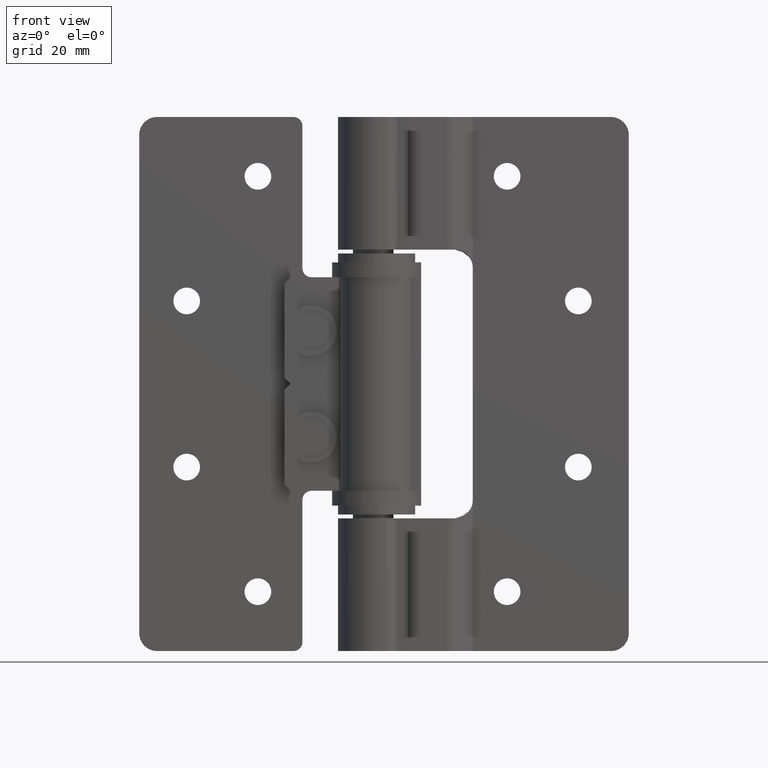
[diagram: clean part render]
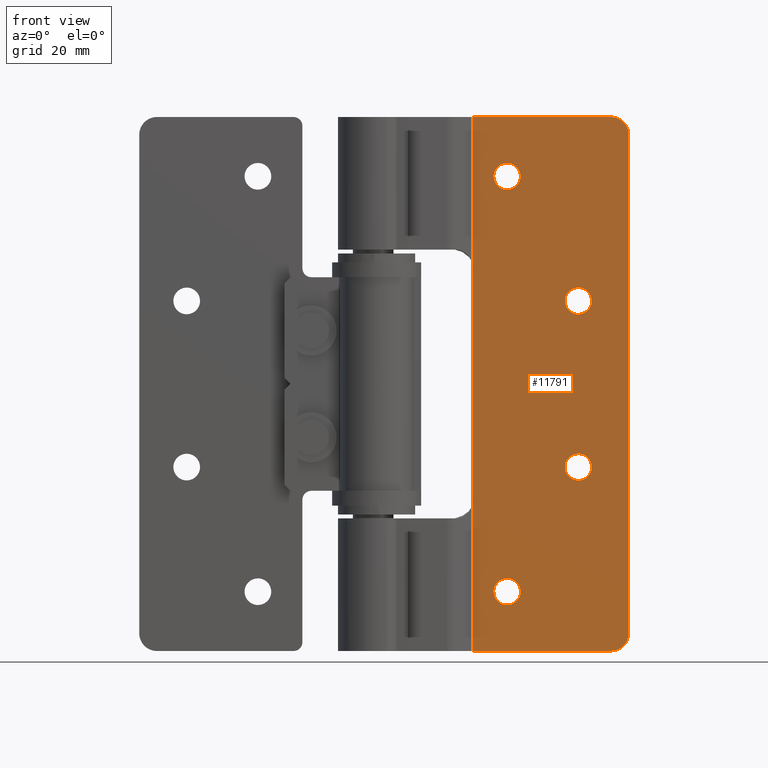
[diagram: same view with one face highlighted and labeled with its STEP entity id]
A machine part, front view. The second image highlights one B-rep face of the part: STEP entity #11791.
In plain terms, the highlighted face is a freeform B-spline surface patch.
Its self-contained STEP definition (entity closure, byte-faithful):
#10707=CARTESIAN_POINT('',(24.243064000878789,7.0,9.823467034348742));
#10708=VERTEX_POINT('',#10707);
#10714=CARTESIAN_POINT('',(22.0,7.0,12.250000000000000));
#10715=VERTEX_POINT('',#10714);
#10716=CARTESIAN_POINT('',(24.243064000878785,7.0,9.823467034348742));
#10717=CARTESIAN_POINT('',(24.249999999999996,7.000000000000001,9.911597259100329));
#10718=CARTESIAN_POINT('',(24.250000000000000,7.0,10.0));
#10719=CARTESIAN_POINT('',(24.250000000000007,6.999999999999999,12.249999999999996));
#10720=CARTESIAN_POINT('',(22.0,7.0,12.250000000000000));
#10728=(BOUNDED_CURVE()B_SPLINE_CURVE(2,(#10716,#10717,#10718,#10719,#10720),.UNSPECIFIED.,.F.,.U.)B_SPLINE_CURVE_WITH_KNOTS((3,2,3),(0.736331300612621,0.750000000000000,1.0),.UNSPECIFIED.)CURVE()GEOMETRIC_REPRESENTATION_ITEM()RATIONAL_B_SPLINE_CURVE((0.969723356129772,0.983986122557748,1.0,0.707106781186547,1.0))REPRESENTATION_ITEM(''));
#10729=EDGE_CURVE('',#10708,#10715,#10728,.T.);
#10731=CARTESIAN_POINT('',(19.756935999121211,7.0,10.176532965651260));
#10732=VERTEX_POINT('',#10731);
#10733=CARTESIAN_POINT('',(22.0,7.0,12.250000000000000));
#10734=CARTESIAN_POINT('',(19.920121394014227,7.0,12.249999999999998));
#10735=CARTESIAN_POINT('',(19.756935999121204,6.999999999999999,10.176532965651260));
#10743=(BOUNDED_CURVE()B_SPLINE_CURVE(2,(#10733,#10734,#10735),.UNSPECIFIED.,.F.,.U.)B_SPLINE_CURVE_WITH_KNOTS((3,3),(0.0,0.236331300612621),.UNSPECIFIED.)CURVE()GEOMETRIC_REPRESENTATION_ITEM()RATIONAL_B_SPLINE_CURVE((1.0,0.723120658628799,0.969723356129772))REPRESENTATION_ITEM(''));
#10744=EDGE_CURVE('',#10715,#10732,#10743,.T.);
#10790=CARTESIAN_POINT('',(22.0,7.0,7.750000000000000));
#10791=VERTEX_POINT('',#10790);
#10792=CARTESIAN_POINT('',(19.756935999121207,6.999999999999999,10.176532965651257));
#10793=CARTESIAN_POINT('',(19.750000000000004,6.999999999999999,10.088402740899671));
#10794=CARTESIAN_POINT('',(19.750000000000000,7.0,10.0));
#10795=CARTESIAN_POINT('',(19.749999999999996,6.999999999999999,7.750000000000001));
#10796=CARTESIAN_POINT('',(22.0,7.0,7.750000000000000));
#10804=(BOUNDED_CURVE()B_SPLINE_CURVE(2,(#10792,#10793,#10794,#10795,#10796),.UNSPECIFIED.,.F.,.U.)B_SPLINE_CURVE_WITH_KNOTS((3,2,3),(0.236331300612621,0.250000000000000,0.500000000000000),.UNSPECIFIED.)CURVE()GEOMETRIC_REPRESENTATION_ITEM()RATIONAL_B_SPLINE_CURVE((0.969723356129772,0.983986122557748,1.0,0.707106781186547,1.0))REPRESENTATION_ITEM(''));
#10805=EDGE_CURVE('',#10732,#10791,#10804,.T.);
#10807=CARTESIAN_POINT('',(22.0,7.0,7.750000000000000));
#10808=CARTESIAN_POINT('',(24.079878605985783,6.999999999999998,7.749999999999999));
#10809=CARTESIAN_POINT('',(24.243064000878789,7.0,9.823467034348738));
#10817=(BOUNDED_CURVE()B_SPLINE_CURVE(2,(#10807,#10808,#10809),.UNSPECIFIED.,.F.,.U.)B_SPLINE_CURVE_WITH_KNOTS((3,3),(0.500000000000000,0.736331300612621),.UNSPECIFIED.)CURVE()GEOMETRIC_REPRESENTATION_ITEM()RATIONAL_B_SPLINE_CURVE((1.0,0.723120658628799,0.969723356129773))REPRESENTATION_ITEM(''));
#10818=EDGE_CURVE('',#10791,#10708,#10817,.T.);
#10889=CARTESIAN_POINT('',(36.243064000878803,7.0,30.823467034348742));
#10890=VERTEX_POINT('',#10889);
#10896=CARTESIAN_POINT('',(34.0,7.0,33.250000000000000));
#10897=VERTEX_POINT('',#10896);
#10898=CARTESIAN_POINT('',(36.243064000878810,7.000000000000001,30.823467034348738));
#10899=CARTESIAN_POINT('',(36.250000000000021,7.0,30.911597259100326));
#10900=CARTESIAN_POINT('',(36.250000000000007,7.0,31.0));
#10901=CARTESIAN_POINT('',(36.250000000000007,6.999999999999999,33.249999999999993));
#10902=CARTESIAN_POINT('',(34.0,7.0,33.250000000000000));
#10910=(BOUNDED_CURVE()B_SPLINE_CURVE(2,(#10898,#10899,#10900,#10901,#10902),.UNSPECIFIED.,.F.,.U.)B_SPLINE_CURVE_WITH_KNOTS((3,2,3),(0.736331300612621,0.750000000000000,1.0),.UNSPECIFIED.)CURVE()GEOMETRIC_REPRESENTATION_ITEM()RATIONAL_B_SPLINE_CURVE((0.969723356129772,0.983986122557748,1.0,0.707106781186547,1.0))REPRESENTATION_ITEM(''));
#10911=EDGE_CURVE('',#10890,#10897,#10910,.T.);
#10913=CARTESIAN_POINT('',(31.756935999121211,7.0,31.176532965651258));
#10914=VERTEX_POINT('',#10913);
#10915=CARTESIAN_POINT('',(34.0,7.0,33.250000000000000));
#10916=CARTESIAN_POINT('',(31.920121394014213,6.999999999999999,33.250000000000014));
#10917=CARTESIAN_POINT('',(31.756935999121207,7.0,31.176532965651258));
#10925=(BOUNDED_CURVE()B_SPLINE_CURVE(2,(#10915,#10916,#10917),.UNSPECIFIED.,.F.,.U.)B_SPLINE_CURVE_WITH_KNOTS((3,3),(0.0,0.236331300612621),.UNSPECIFIED.)CURVE()GEOMETRIC_REPRESENTATION_ITEM()RATIONAL_B_SPLINE_CURVE((1.0,0.723120658628799,0.969723356129773))REPRESENTATION_ITEM(''));
#10926=EDGE_CURVE('',#10897,#10914,#10925,.T.);
#10972=CARTESIAN_POINT('',(34.0,7.0,28.750000000000000));
#10973=VERTEX_POINT('',#10972);
#10974=CARTESIAN_POINT('',(31.756935999121204,7.000000000000001,31.176532965651244));
#10975=CARTESIAN_POINT('',(31.749999999999993,7.0,31.088402740899660));
#10976=CARTESIAN_POINT('',(31.750000000000000,7.0,31.0));
#10977=CARTESIAN_POINT('',(31.749999999999996,6.999999999999999,28.750000000000000));
#10978=CARTESIAN_POINT('',(34.0,7.0,28.750000000000000));
#10986=(BOUNDED_CURVE()B_SPLINE_CURVE(2,(#10974,#10975,#10976,#10977,#10978),.UNSPECIFIED.,.F.,.U.)B_SPLINE_CURVE_WITH_KNOTS((3,2,3),(0.236331300612621,0.250000000000000,0.500000000000000),.UNSPECIFIED.)CURVE()GEOMETRIC_REPRESENTATION_ITEM()RATIONAL_B_SPLINE_CURVE((0.969723356129773,0.983986122557749,1.0,0.707106781186547,1.0))REPRESENTATION_ITEM(''));
#10987=EDGE_CURVE('',#10914,#10973,#10986,.T.);
#10989=CARTESIAN_POINT('',(34.0,7.0,28.750000000000000));
#10990=CARTESIAN_POINT('',(36.079878605985790,6.999999999999999,28.749999999999996));
#10991=CARTESIAN_POINT('',(36.243064000878803,6.999999999999999,30.823467034348738));
#10999=(BOUNDED_CURVE()B_SPLINE_CURVE(2,(#10989,#10990,#10991),.UNSPECIFIED.,.F.,.U.)B_SPLINE_CURVE_WITH_KNOTS((3,3),(0.500000000000000,0.736331300612621),.UNSPECIFIED.)CURVE()GEOMETRIC_REPRESENTATION_ITEM()RATIONAL_B_SPLINE_CURVE((1.0,0.723120658628799,0.969723356129772))REPRESENTATION_ITEM(''));
#11000=EDGE_CURVE('',#10973,#10890,#10999,.T.);
#11071=CARTESIAN_POINT('',(36.243064000878803,7.0,58.823467034348752));
#11072=VERTEX_POINT('',#11071);
#11078=CARTESIAN_POINT('',(34.0,7.0,61.250000000000000));
#11079=VERTEX_POINT('',#11078);
#11080=CARTESIAN_POINT('',(36.243064000878803,7.000000000000001,58.823467034348738));
#11081=CARTESIAN_POINT('',(36.250000000000007,7.0,58.911597259100340));
#11082=CARTESIAN_POINT('',(36.250000000000007,7.0,59.0));
#11083=CARTESIAN_POINT('',(36.250000000000007,6.999999999999999,61.250000000000000));
#11084=CARTESIAN_POINT('',(34.0,7.0,61.250000000000000));
#11092=(BOUNDED_CURVE()B_SPLINE_CURVE(2,(#11080,#11081,#11082,#11083,#11084),.UNSPECIFIED.,.F.,.U.)B_SPLINE_CURVE_WITH_KNOTS((3,2,3),(0.736331300612622,0.750000000000000,1.0),.UNSPECIFIED.)CURVE()GEOMETRIC_REPRESENTATION_ITEM()RATIONAL_B_SPLINE_CURVE((0.969723356129774,0.983986122557749,1.0,0.707106781186547,1.0))REPRESENTATION_ITEM(''));
#11093=EDGE_CURVE('',#11072,#11079,#11092,.T.);
#11095=CARTESIAN_POINT('',(31.756935999121211,7.0,59.176532965651248));
#11096=VERTEX_POINT('',#11095);
#11097=CARTESIAN_POINT('',(34.0,7.0,61.250000000000000));
#11098=CARTESIAN_POINT('',(31.920121394014206,6.999999999999999,61.250000000000000));
#11099=CARTESIAN_POINT('',(31.756935999121200,7.0,59.176532965651226));
#11107=(BOUNDED_CURVE()B_SPLINE_CURVE(2,(#11097,#11098,#11099),.UNSPECIFIED.,.F.,.U.)B_SPLINE_CURVE_WITH_KNOTS((3,3),(0.0,0.236331300612622),.UNSPECIFIED.)CURVE()GEOMETRIC_REPRESENTATION_ITEM()RATIONAL_B_SPLINE_CURVE((1.0,0.723120658628798,0.969723356129774))REPRESENTATION_ITEM(''));
#11108=EDGE_CURVE('',#11079,#11096,#11107,.T.);
#11154=CARTESIAN_POINT('',(34.0,7.0,56.749999999999993));
#11155=VERTEX_POINT('',#11154);
#11156=CARTESIAN_POINT('',(31.756935999121207,6.999999999999999,59.176532965651241));
#11157=CARTESIAN_POINT('',(31.749999999999996,7.0,59.088402740899667));
#11158=CARTESIAN_POINT('',(31.750000000000000,7.0,59.0));
#11159=CARTESIAN_POINT('',(31.749999999999996,6.999999999999999,56.749999999999993));
#11160=CARTESIAN_POINT('',(34.0,7.0,56.749999999999993));
#11168=(BOUNDED_CURVE()B_SPLINE_CURVE(2,(#11156,#11157,#11158,#11159,#11160),.UNSPECIFIED.,.F.,.U.)B_SPLINE_CURVE_WITH_KNOTS((3,2,3),(0.236331300612622,0.250000000000000,0.500000000000000),.UNSPECIFIED.)CURVE()GEOMETRIC_REPRESENTATION_ITEM()RATIONAL_B_SPLINE_CURVE((0.969723356129774,0.983986122557749,1.0,0.707106781186547,1.0))REPRESENTATION_ITEM(''));
#11169=EDGE_CURVE('',#11096,#11155,#11168,.T.);
#11171=CARTESIAN_POINT('',(34.0,7.0,56.749999999999993));
#11172=CARTESIAN_POINT('',(36.079878605985790,6.999999999999999,56.749999999999986));
#11173=CARTESIAN_POINT('',(36.243064000878803,6.999999999999999,58.823467034348731));
#11181=(BOUNDED_CURVE()B_SPLINE_CURVE(2,(#11171,#11172,#11173),.UNSPECIFIED.,.F.,.U.)B_SPLINE_CURVE_WITH_KNOTS((3,3),(0.500000000000000,0.736331300612621),.UNSPECIFIED.)CURVE()GEOMETRIC_REPRESENTATION_ITEM()RATIONAL_B_SPLINE_CURVE((1.0,0.723120658628799,0.969723356129772))REPRESENTATION_ITEM(''));
#11182=EDGE_CURVE('',#11155,#11072,#11181,.T.);
#11253=CARTESIAN_POINT('',(24.243064000878789,7.0,79.823467034348738));
#11254=VERTEX_POINT('',#11253);
#11260=CARTESIAN_POINT('',(22.0,7.0,82.250000000000000));
#11261=VERTEX_POINT('',#11260);
#11262=CARTESIAN_POINT('',(24.243064000878785,7.0,79.823467034348724));
#11263=CARTESIAN_POINT('',(24.249999999999996,7.000000000000002,79.911597259100319));
#11264=CARTESIAN_POINT('',(24.250000000000000,7.0,80.0));
#11265=CARTESIAN_POINT('',(24.250000000000007,6.999999999999999,82.250000000000000));
#11266=CARTESIAN_POINT('',(22.0,7.0,82.250000000000000));
#11274=(BOUNDED_CURVE()B_SPLINE_CURVE(2,(#11262,#11263,#11264,#11265,#11266),.UNSPECIFIED.,.F.,.U.)B_SPLINE_CURVE_WITH_KNOTS((3,2,3),(0.736331300612620,0.750000000000000,1.0),.UNSPECIFIED.)CURVE()GEOMETRIC_REPRESENTATION_ITEM()RATIONAL_B_SPLINE_CURVE((0.969723356129771,0.983986122557747,1.0,0.707106781186547,1.0))REPRESENTATION_ITEM(''));
#11275=EDGE_CURVE('',#11254,#11261,#11274,.T.);
#11277=CARTESIAN_POINT('',(19.756935999121211,7.0,80.176532965651262));
#11278=VERTEX_POINT('',#11277);
#11279=CARTESIAN_POINT('',(22.0,7.0,82.250000000000000));
#11280=CARTESIAN_POINT('',(19.920121394014217,6.999999999999999,82.250000000000000));
#11281=CARTESIAN_POINT('',(19.756935999121204,7.000000000000001,80.176532965651262));
#11289=(BOUNDED_CURVE()B_SPLINE_CURVE(2,(#11279,#11280,#11281),.UNSPECIFIED.,.F.,.U.)B_SPLINE_CURVE_WITH_KNOTS((3,3),(0.0,0.236331300612621),.UNSPECIFIED.)CURVE()GEOMETRIC_REPRESENTATION_ITEM()RATIONAL_B_SPLINE_CURVE((1.0,0.723120658628799,0.969723356129772))REPRESENTATION_ITEM(''));
#11290=EDGE_CURVE('',#11261,#11278,#11289,.T.);
#11336=CARTESIAN_POINT('',(22.0,7.0,77.750000000000000));
#11337=VERTEX_POINT('',#11336);
#11338=CARTESIAN_POINT('',(19.756935999121211,7.000000000000001,80.176532965651276));
#11339=CARTESIAN_POINT('',(19.750000000000000,7.0,80.088402740899681));
#11340=CARTESIAN_POINT('',(19.750000000000000,7.0,80.0));
#11341=CARTESIAN_POINT('',(19.749999999999996,6.999999999999999,77.750000000000014));
#11342=CARTESIAN_POINT('',(22.0,7.0,77.750000000000000));
#11350=(BOUNDED_CURVE()B_SPLINE_CURVE(2,(#11338,#11339,#11340,#11341,#11342),.UNSPECIFIED.,.F.,.U.)B_SPLINE_CURVE_WITH_KNOTS((3,2,3),(0.236331300612621,0.250000000000000,0.500000000000000),.UNSPECIFIED.)CURVE()GEOMETRIC_REPRESENTATION_ITEM()RATIONAL_B_SPLINE_CURVE((0.969723356129772,0.983986122557748,1.0,0.707106781186547,1.0))REPRESENTATION_ITEM(''));
#11351=EDGE_CURVE('',#11278,#11337,#11350,.T.);
#11353=CARTESIAN_POINT('',(22.0,7.0,77.750000000000000));
#11354=CARTESIAN_POINT('',(24.079878605985765,6.999999999999998,77.750000000000000));
#11355=CARTESIAN_POINT('',(24.243064000878785,7.0,79.823467034348724));
#11363=(BOUNDED_CURVE()B_SPLINE_CURVE(2,(#11353,#11354,#11355),.UNSPECIFIED.,.F.,.U.)B_SPLINE_CURVE_WITH_KNOTS((3,3),(0.500000000000000,0.736331300612620),.UNSPECIFIED.)CURVE()GEOMETRIC_REPRESENTATION_ITEM()RATIONAL_B_SPLINE_CURVE((1.0,0.723120658628800,0.969723356129771))REPRESENTATION_ITEM(''));
#11364=EDGE_CURVE('',#11337,#11254,#11363,.T.);
#11454=CARTESIAN_POINT('',(16.199999999999999,7.000000000005000,64.650000000000006));
#11455=VERTEX_POINT('',#11454);
#11690=CARTESIAN_POINT('',(14.886315050974501,7.0,-4.495499825562538));
#11691=CARTESIAN_POINT('',(14.886315050974501,7.0,94.495502239550646));
#11692=CARTESIAN_POINT('',(43.813685654446473,7.0,-4.495499825562538));
#11693=CARTESIAN_POINT('',(43.813685654446473,7.0,94.495502239550646));
#11694=B_SPLINE_SURFACE_WITH_KNOTS('',1,1,((#11690,#11692),(#11691,#11693)),.UNSPECIFIED.,.F.,.F.,.U.,(2,2),(2,2),(0.0,98.991002065113179),(0.0,28.927370603471971),.UNSPECIFIED.);
#11695=CARTESIAN_POINT('',(16.199999999999999,7.0,0.0));
#11696=VERTEX_POINT('',#11695);
#11697=CARTESIAN_POINT('',(39.500000000000000,7.0,0.0));
#11698=VERTEX_POINT('',#11697);
#11699=CARTESIAN_POINT('',(16.199999999999999,7.0,0.0));
#11700=CARTESIAN_POINT('',(39.500000000000000,7.0,0.0));
#11701=QUASI_UNIFORM_CURVE('',1,(#11699,#11700),.UNSPECIFIED.,.F.,.U.);
#11702=EDGE_CURVE('',#11696,#11698,#11701,.T.);
#11703=ORIENTED_EDGE('',*,*,#11702,.T.);
#11704=CARTESIAN_POINT('',(42.500000000000000,7.0,3.0));
#11705=VERTEX_POINT('',#11704);
#11706=CARTESIAN_POINT('',(39.500000000000000,7.0,0.0));
#11707=CARTESIAN_POINT('',(42.500000000000000,6.999999999999999,0.0));
#11708=CARTESIAN_POINT('',(42.500000000000000,7.0,3.0));
#11716=(BOUNDED_CURVE()B_SPLINE_CURVE(2,(#11706,#11707,#11708),.UNSPECIFIED.,.F.,.U.)CURVE()GEOMETRIC_REPRESENTATION_ITEM()QUASI_UNIFORM_CURVE()RATIONAL_B_SPLINE_CURVE((1.0,0.707106781186548,1.0))REPRESENTATION_ITEM(''));
#11717=EDGE_CURVE('',#11698,#11705,#11716,.T.);
#11718=ORIENTED_EDGE('',*,*,#11717,.T.);
#11719=CARTESIAN_POINT('',(42.500000000000000,7.0,87.0));
#11720=VERTEX_POINT('',#11719);
#11721=CARTESIAN_POINT('',(42.500000000000000,7.0,87.0));
#11722=CARTESIAN_POINT('',(42.500000000000000,7.0,3.0));
#11723=QUASI_UNIFORM_CURVE('',1,(#11721,#11722),.UNSPECIFIED.,.F.,.U.);
#11724=EDGE_CURVE('',#11720,#11705,#11723,.T.);
#11725=ORIENTED_EDGE('',*,*,#11724,.F.);
#11726=CARTESIAN_POINT('',(39.500000000000000,7.0,90.0));
#11727=VERTEX_POINT('',#11726);
#11728=CARTESIAN_POINT('',(42.500000000000000,7.0,87.0));
#11729=CARTESIAN_POINT('',(42.500000000000000,6.999999999999999,89.999999999999986));
#11730=CARTESIAN_POINT('',(39.500000000000000,7.0,90.0));
#11738=(BOUNDED_CURVE()B_SPLINE_CURVE(2,(#11728,#11729,#11730),.UNSPECIFIED.,.F.,.U.)CURVE()GEOMETRIC_REPRESENTATION_ITEM()QUASI_UNIFORM_CURVE()RATIONAL_B_SPLINE_CURVE((1.0,0.707106781186548,1.0))REPRESENTATION_ITEM(''));
#11739=EDGE_CURVE('',#11720,#11727,#11738,.T.);
#11740=ORIENTED_EDGE('',*,*,#11739,.T.);
#11741=CARTESIAN_POINT('',(16.199999999999999,7.0,90.0));
#11742=VERTEX_POINT('',#11741);
#11743=CARTESIAN_POINT('',(16.199999999999999,7.0,90.0));
#11744=CARTESIAN_POINT('',(39.500000000000000,7.0,90.0));
#11745=QUASI_UNIFORM_CURVE('',1,(#11743,#11744),.UNSPECIFIED.,.F.,.U.);
#11746=EDGE_CURVE('',#11742,#11727,#11745,.T.);
#11747=ORIENTED_EDGE('',*,*,#11746,.F.);
#11748=CARTESIAN_POINT('',(16.199999999999999,7.0,90.0));
#11749=CARTESIAN_POINT('',(16.199999999999999,7.000000000005000,64.650000000000006));
#11750=QUASI_UNIFORM_CURVE('',1,(#11748,#11749),.UNSPECIFIED.,.F.,.U.);
#11751=EDGE_CURVE('',#11742,#11455,#11750,.T.);
#11752=ORIENTED_EDGE('',*,*,#11751,.T.);
#11753=CARTESIAN_POINT('',(16.199999999999999,7.000000000033420,25.350000000000001));
#11754=VERTEX_POINT('',#11753);
#11755=CARTESIAN_POINT('',(16.199999999999999,7.000000000005000,64.650000000000006));
#11756=CARTESIAN_POINT('',(16.199999999999999,7.000000000033420,25.350000000000001));
#11757=QUASI_UNIFORM_CURVE('',1,(#11755,#11756),.UNSPECIFIED.,.F.,.U.);
#11758=EDGE_CURVE('',#11455,#11754,#11757,.T.);
#11759=ORIENTED_EDGE('',*,*,#11758,.T.);
#11760=CARTESIAN_POINT('',(16.199999999999999,7.000000000033420,25.350000000000001));
#11761=CARTESIAN_POINT('',(16.199999999999999,7.0,0.0));
#11762=QUASI_UNIFORM_CURVE('',1,(#11760,#11761),.UNSPECIFIED.,.F.,.U.);
#11763=EDGE_CURVE('',#11754,#11696,#11762,.T.);
#11764=ORIENTED_EDGE('',*,*,#11763,.T.);
#11765=EDGE_LOOP('',(#11703,#11718,#11725,#11740,#11747,#11752,#11759,#11764));
#11766=FACE_OUTER_BOUND('',#11765,.T.);
#11767=ORIENTED_EDGE('',*,*,#11364,.F.);
#11768=ORIENTED_EDGE('',*,*,#11351,.F.);
#11769=ORIENTED_EDGE('',*,*,#11290,.F.);
#11770=ORIENTED_EDGE('',*,*,#11275,.F.);
#11771=EDGE_LOOP('',(#11767,#11768,#11769,#11770));
#11772=FACE_BOUND('',#11771,.T.);
#11773=ORIENTED_EDGE('',*,*,#11182,.F.);
#11774=ORIENTED_EDGE('',*,*,#11169,.F.);
#11775=ORIENTED_EDGE('',*,*,#11108,.F.);
#11776=ORIENTED_EDGE('',*,*,#11093,.F.);
#11777=EDGE_LOOP('',(#11773,#11774,#11775,#11776));
#11778=FACE_BOUND('',#11777,.T.);
#11779=ORIENTED_EDGE('',*,*,#11000,.F.);
#11780=ORIENTED_EDGE('',*,*,#10987,.F.);
#11781=ORIENTED_EDGE('',*,*,#10926,.F.);
#11782=ORIENTED_EDGE('',*,*,#10911,.F.);
#11783=EDGE_LOOP('',(#11779,#11780,#11781,#11782));
#11784=FACE_BOUND('',#11783,.T.);
#11785=ORIENTED_EDGE('',*,*,#10818,.F.);
#11786=ORIENTED_EDGE('',*,*,#10805,.F.);
#11787=ORIENTED_EDGE('',*,*,#10744,.F.);
#11788=ORIENTED_EDGE('',*,*,#10729,.F.);
#11789=EDGE_LOOP('',(#11785,#11786,#11787,#11788));
#11790=FACE_BOUND('',#11789,.T.);
#11791=ADVANCED_FACE('',(#11766,#11772,#11778,#11784,#11790),#11694,.F.);